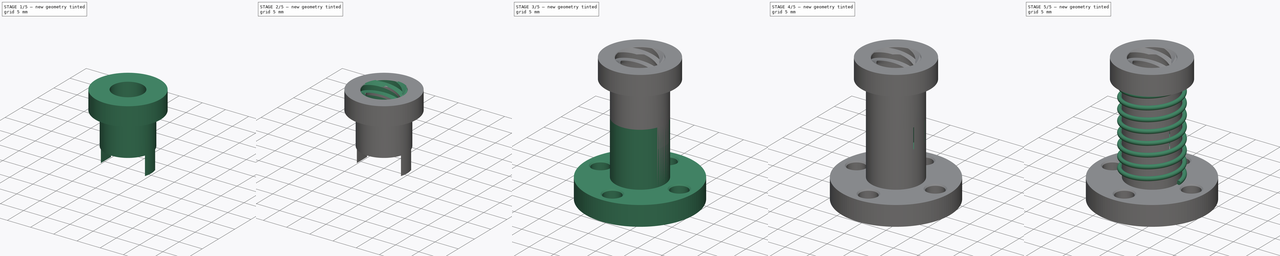
[diagram: build sequence overview — one tinted view per stage of 5, left to right]
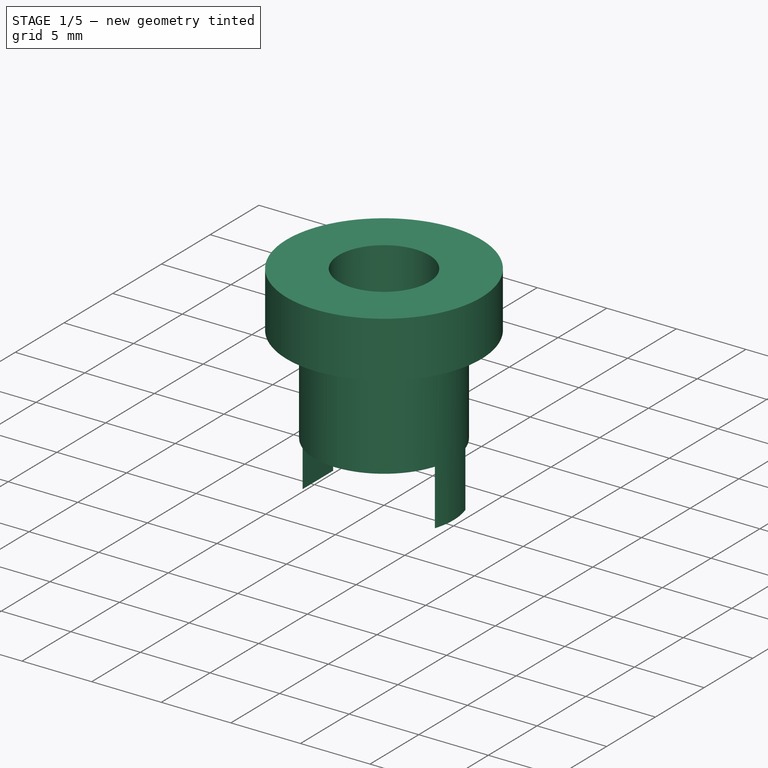
[diagram: stage 1 of 5 — iso view after this stage's code; geometry added in this stage tinted green]
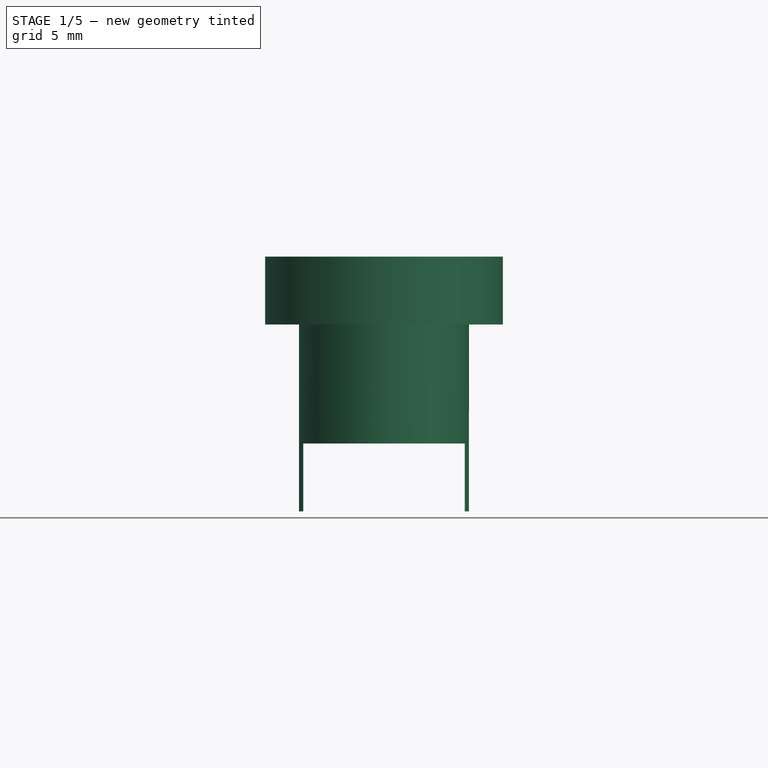
[diagram: stage 1 of 5 — front view after this stage's code; geometry added in this stage tinted green]
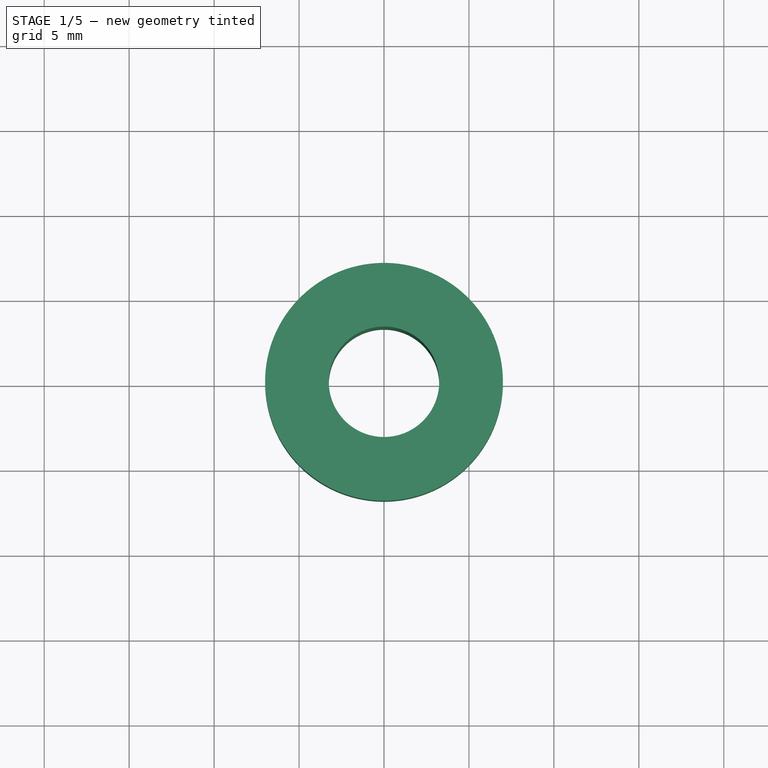
[diagram: stage 1 of 5 — top view after this stage's code; geometry added in this stage tinted green]
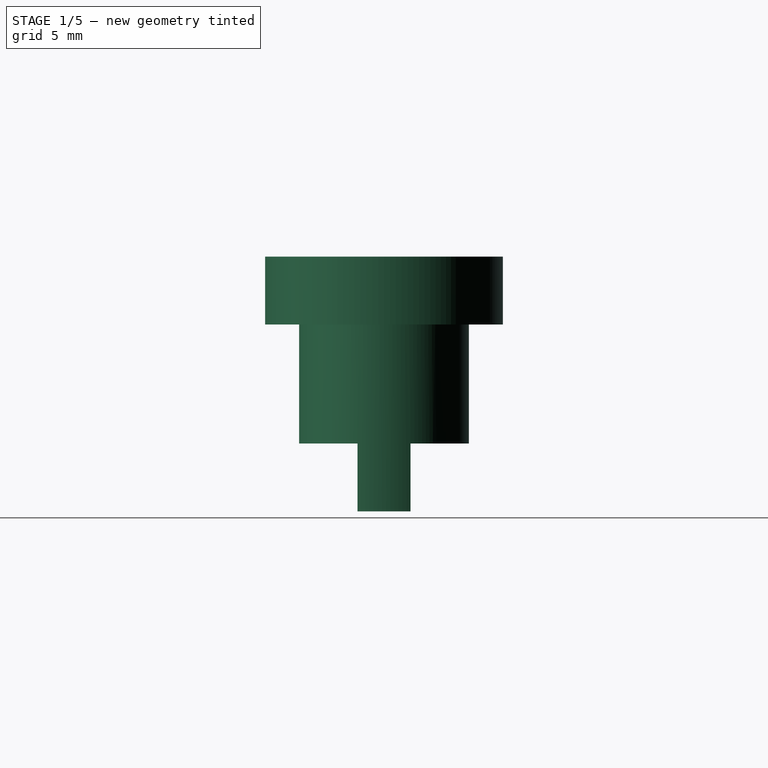
[diagram: stage 1 of 5 — right view after this stage's code; geometry added in this stage tinted green]
FCSTD DOCUMENT  (FreeCAD 0.20R28193 (Git))
Label: T8_antibacklash_nut
Comment: The screw was made based on: ISO 2904\n\nhttps://cdn.standards.iteh.ai/samples/78729/7d158726108b478c889fa887d460ba78/ISO-2904-2020.pdf
License: Creative Commons Attribution
LicenseURL: http://creativecommons.org/licenses/by/4.0/
objects: Sketcher::SketchObject×12, PartDesign::Pocket×5, PartDesign::PolarPattern×3, PartDesign::Body×3, PartDesign::Revolution×2, PartDesign::SubtractiveHelix×2, PartDesign::Groove×2, PartDesign::Chamfer×1, PartDesign::AdditiveHelix×1, App::Part×1
note: 44 computed .brp shape members not serialized (recipe doc carries the construction recipe); baked Part::Feature solids carry a one-line shape summary decoded from their .brp

FEATURE [Sketcher::SketchObject] Sketch005
  FullyConstrained = true
  MapMode = 5
  Placement = pos=(0,0,0) rot=(1,0,0;1.5708rad)
  Support = -> [XZ_Plane002]
  sketch-geometry (6):
    g0: LineSegment StartX=0 StartY=11 StartZ=0 EndX=0 EndY=26 EndZ=0
    g1: LineSegment StartX=0 StartY=26 StartZ=0 EndX=-7 EndY=26 EndZ=0
    g2: LineSegment StartX=-7 StartY=26 StartZ=0 EndX=-7 EndY=22 EndZ=0
    g3: LineSegment StartX=-7 StartY=22 StartZ=0 EndX=-5 EndY=22 EndZ=0
    g4: LineSegment StartX=-5 StartY=22 StartZ=0 EndX=-5 EndY=11 EndZ=0
    g5: LineSegment StartX=-5 StartY=11 StartZ=0 EndX=0 EndY=11 EndZ=0
  constraints (18):
    c: PointOnObject(g0,g-2)
    c: Vertical(g0)
    c: Coincident(g0,g1)
    c: Horizontal(g1)
    c: Coincident(g1,g2)
    c: Vertical(g2)
    c: Coincident(g2,g3)
    c: Horizontal(g3)
    c: Coincident(g3,g4)
    c: Vertical(g4)
    c: Coincident(g4,g5)
    c: Coincident(g5,g0)
    c: Horizontal(g5)
    c: DistanceX(g1,g1) = 7
    c: DistanceX(g5,g5) = 5
    c: DistanceY(g2,g2) = 4
    c: DistanceY(g0,g0) = 15
    c: DistanceY(g0) = 11
FEATURE [PartDesign::Revolution] Revolution001
  Angle = 360
  Axis = (0,2e-16,1)
  Base = (0,0,0)
  Placement = pos=(0,0,0) rot=(1,0,0;1.5708rad)
  Profile = -> Sketch005
  ReferenceAxis = -> Sketch005 [V_Axis]
FEATURE [Sketcher::SketchObject] Sketch006
  FullyConstrained = true
  MapMode = 5
  Placement = pos=(0,1.72e-14,26) rot=(0,0,1;3.14159rad)
  Support = -> [Revolution001]
  sketch-geometry (1):
    g0: Circle CenterX=0 CenterY=0 CenterZ=0 NormalX=0 NormalY=0 NormalZ=1 AngleXU=0 Radius=3.25
  constraints (2):
    c: Coincident(g0,g-1)
    c: Diameter(g0) = 6.5
FEATURE [PartDesign::Pocket] Pocket003
  BaseFeature = -> Revolution001
  Direction = (0,-7e-16,-1)
  Length = 5
  Length2 = 5
  Placement = pos=(0,0,0) rot=(1,0,0;1.5708rad)
  Profile = -> Sketch006
  ReferenceAxis = -> Sketch006 [N_Axis]
  Type = 2
FEATURE [Sketcher::SketchObject] Sketch007
  ExternalGeometry = -> [Pocket003]
  FullyConstrained = true
  MapMode = 5
  Placement = pos=(0,0,0) rot=(1,0,0;1.5708rad)
  Support = -> [XZ_Plane002]
  sketch-geometry (5):
    g0: LineSegment StartX=-4.75 StartY=15 StartZ=0 EndX=-4.75 EndY=11 EndZ=0
    g1: LineSegment StartX=-4.75 StartY=11 StartZ=0 EndX=4.75 EndY=11 EndZ=0
    g2: LineSegment StartX=4.75 StartY=11 StartZ=0 EndX=4.75 EndY=15 EndZ=0
    g3: LineSegment StartX=4.75 StartY=15 StartZ=0 EndX=-4.75 EndY=15 EndZ=0
    g4: GeomPoint X=0 Y=13 Z=0
  constraints (13):
    c: Coincident(g0,g1)
    c: Coincident(g1,g2)
    c: Coincident(g2,g3)
    c: Coincident(g3,g0)
    c: Horizontal(g1)
    c: Horizontal(g3)
    c: Vertical(g0)
    c: Vertical(g2)
    c: Symmetric(g1,g0,g4)
    c: DistanceX(g1,g1) = 9.5
    c: DistanceY(g2,g2) = 4
    c: PointOnObject(g1,g-3)
    c: PointOnObject(g4,g-2)
FEATURE [PartDesign::Pocket] Pocket004
  BaseFeature = -> Pocket003
  Direction = (0,1,-2e-16)
  Length = 5
  Length2 = 5
  Midplane = true
  Placement = pos=(0,0,0) rot=(1,0,0;1.5708rad)
  Profile = -> Sketch007
  ReferenceAxis = -> Sketch007 [N_Axis]
  Type = 1
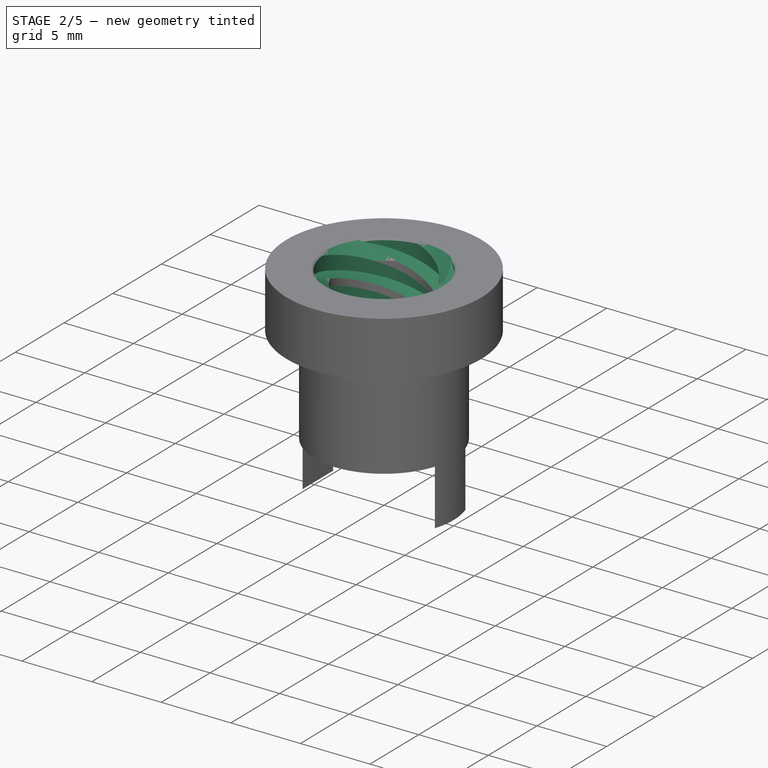
[diagram: stage 2 of 5 — iso view after this stage's code; geometry added in this stage tinted green]
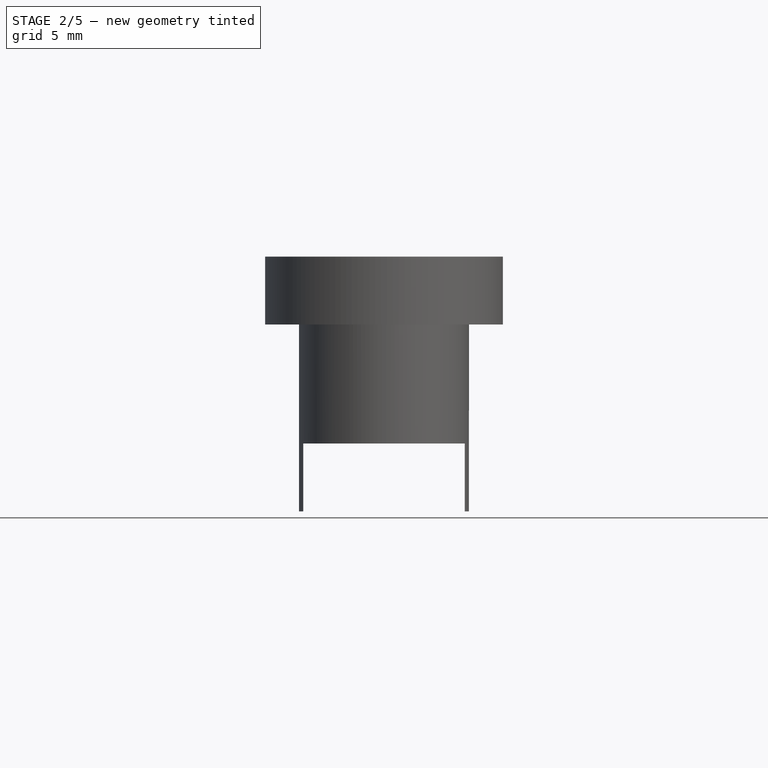
[diagram: stage 2 of 5 — front view after this stage's code; geometry added in this stage tinted green]
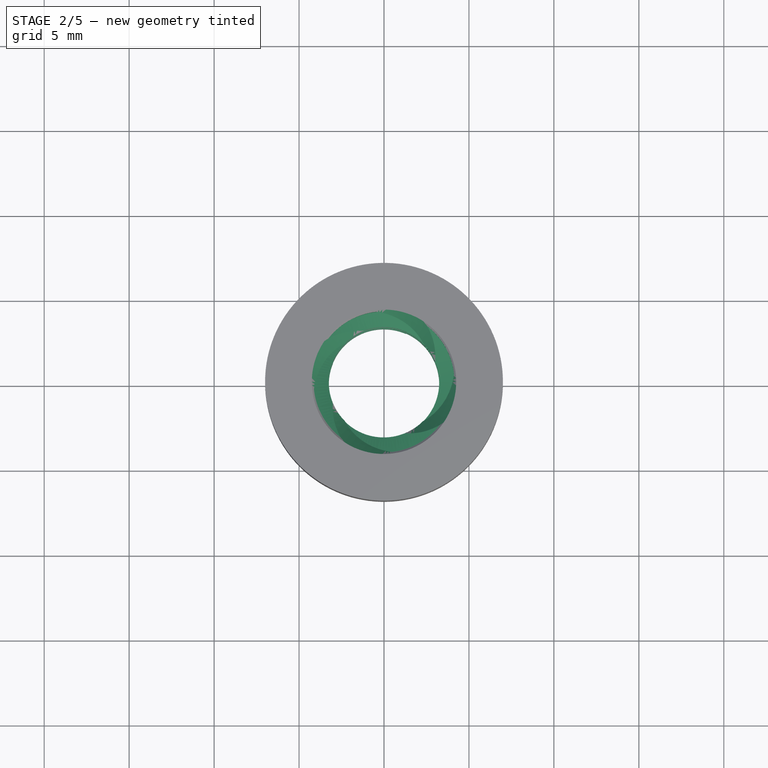
[diagram: stage 2 of 5 — top view after this stage's code; geometry added in this stage tinted green]
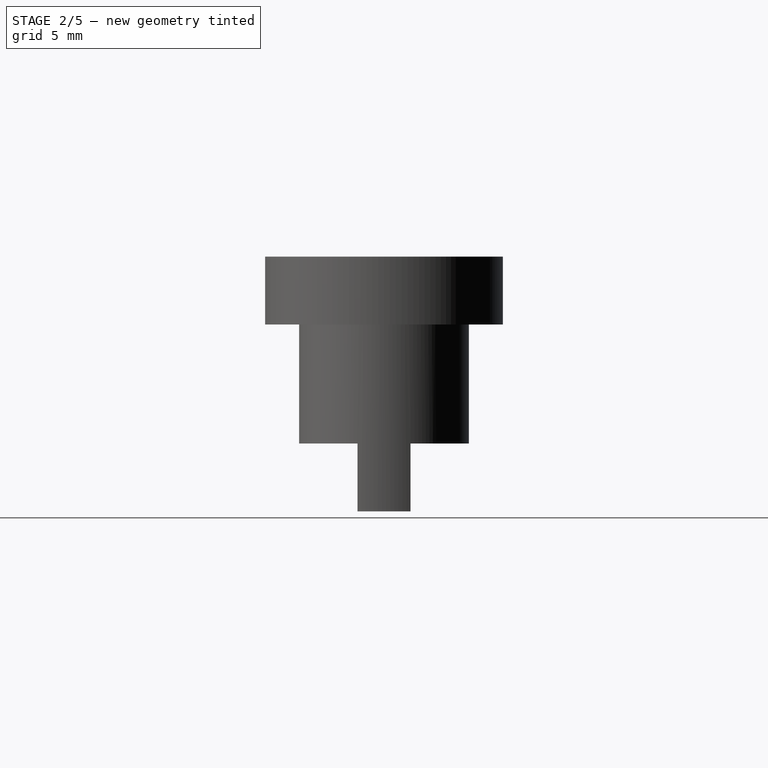
[diagram: stage 2 of 5 — right view after this stage's code; geometry added in this stage tinted green]
FEATURE [PartDesign::Body] Body  label="Bottom"
  Group = -> [Sketch001,Revolution,Sketch002,Pocket,Chamfer,PolarPattern,Sketch003,Pocket001,Sketch004,Pocket002,Sketch008,SubtractiveHelix,PolarPattern001,Sketch009,Groove]
  Origin = -> Origin001
  Tip = -> Groove
FEATURE [Sketcher::SketchObject] Sketch010
  FullyConstrained = true
  MapMode = 5
  Placement = pos=(0,0,0) rot=(1,0,0;1.5708rad)
  Support = -> [XZ_Plane002]
  sketch-geometry (8):
    g0: LineSegment StartX=6.04904 StartY=0.75 StartZ=0 EndX=3.25 EndY=-1e-16 EndZ=0
    g1: LineSegment StartX=3.25 StartY=-1e-16 StartZ=0 EndX=6.04904 EndY=-0.75 EndZ=0
    g2: LineSegment StartX=6.04904 StartY=-0.75 StartZ=0 EndX=3.25 EndY=-1.5 EndZ=0
    g3: LineSegment StartX=3.25 StartY=-1.5 StartZ=0 EndX=6.04904 EndY=-2.25 EndZ=0
    g4: LineSegment StartX=3.25 StartY=-1e-16 StartZ=0 EndX=3.25 EndY=-1.5 EndZ=0
    g5: LineSegment StartX=3.25 StartY=-1.5 StartZ=0 EndX=4.15 EndY=-1.25885 EndZ=0
    g6: LineSegment StartX=4.15 StartY=-1.25885 StartZ=0 EndX=4.15 EndY=-0.241154 EndZ=0
    g7: LineSegment StartX=4.15 StartY=-0.241154 StartZ=0 EndX=3.25 EndY=-1e-16 EndZ=0
  constraints (23):
    c: PointOnObject(g0,g-1)
    c: Coincident(g0,g1)
    c: Coincident(g1,g2)
    c: Coincident(g2,g3)
    c: Vertical(g3,g1)
    c: Vertical(g1,g0)
    c: Vertical(g0,g2)
    c: Parallel(g3,g1)
    c: Parallel(g2,g0)
    c: Angle(g3,g2) = 0.523599
    c: Angle(g0,g-1) = 2.87979
    c: Coincident(g0,g4)
    c: Coincident(g4,g2)
    c: Coincident(g4,g5)
    c: PointOnObject(g5,g2)
    c: Coincident(g5,g6)
    c: PointOnObject(g6,g1)
    c: Coincident(g6,g7)
    c: Coincident(g7,g4)
    c: Vertical(g6)
    c: DistanceX(g4) = 3.25
    c: DistanceX(g6) = 4.15
    c: DistanceY(g3,g1) = 1.5
FEATURE [PartDesign::SubtractiveHelix] SubtractiveHelix001
  Angle = 0
  Axis = (0,2e-16,1)
  Base = (0,0,0)
  BaseFeature = -> Pocket004
  Growth = 0
  HasBeenEdited = true
  Height = 30
  LeftHanded = false
  Mode = 0
  Outside = false
  Pitch = 8
  Placement = pos=(0,0,0) rot=(1,0,0;1.5708rad)
  Profile = -> Sketch010
  ReferenceAxis = -> Sketch010 [V_Axis]
  Turns = 3.75
FEATURE [PartDesign::PolarPattern] PolarPattern002
  Angle = 360
  Axis = -> Sketch010 [V_Axis]
  BaseFeature = -> SubtractiveHelix001
  Occurrences = 4
  Originals = -> [SubtractiveHelix001]
  Overlap = 0
  Placement = pos=(0,0,0) rot=(1,0,0;1.5708rad)
FEATURE [Sketcher::SketchObject] Sketch011
  ExternalGeometry = -> [PolarPattern002]
  FullyConstrained = true
  MapMode = 5
  Placement = pos=(0,0,0) rot=(1,0,0;1.5708rad)
  Support = -> [XZ_Plane002]
  sketch-geometry (6):
    g0: LineSegment StartX=-4.25 StartY=26 StartZ=0 EndX=-3.25 EndY=26 EndZ=0
    g1: LineSegment StartX=-3.25 StartY=26 StartZ=0 EndX=-3.25 EndY=25 EndZ=0
    g2: LineSegment StartX=-3.25 StartY=25 StartZ=0 EndX=-4.25 EndY=26 EndZ=0
    g3: LineSegment StartX=-4.25 StartY=15 StartZ=0 EndX=-3.25 EndY=15 EndZ=0
    g4: LineSegment StartX=-3.25 StartY=15 StartZ=0 EndX=-3.25 EndY=16 EndZ=0
    g5: LineSegment StartX=-3.25 StartY=16 StartZ=0 EndX=-4.25 EndY=15 EndZ=0
  constraints (18):
    c: PointOnObject(g0,g-3)
    c: PointOnObject(g0,g-3)
    c: Coincident(g0,g1)
    c: Coincident(g1,g2)
    c: Coincident(g2,g0)
    c: PointOnObject(g3,g-4)
    c: PointOnObject(g3,g-4)
    c: Coincident(g3,g4)
    c: Vertical(g4)
    c: Coincident(g4,g5)
    c: Coincident(g5,g3)
    c: Vertical(g4,g1)
    c: Vertical(g1)
    c: Equal(g0,g1)
    c: Equal(g1,g3)
    c: Equal(g3,g4)
    c: DistanceX(g3,g3) = 1
    c: DistanceX(g3) = -3.25
FEATURE [PartDesign::Groove] Groove001
  Angle = 360
  Axis = (0,2e-16,1)
  Base = (0,0,0)
  BaseFeature = -> PolarPattern002
  Placement = pos=(0,0,0) rot=(1,0,0;1.5708rad)
  Profile = -> Sketch011
  ReferenceAxis = -> Sketch011 [V_Axis]
  Reversed = true
FEATURE [PartDesign::Body] Body001  label="Top"
  Group = -> [Sketch005,Revolution001,Sketch006,Pocket003,Sketch007,Pocket004,Sketch010,SubtractiveHelix001,PolarPattern002,Sketch011,Groove001]
  Origin = -> Origin002
  Tip = -> Groove001
FEATURE [App::Part] Part  label="T8 antibacklash nut"
  Group = -> [Body,Body001,Body002]
  Origin = -> Origin
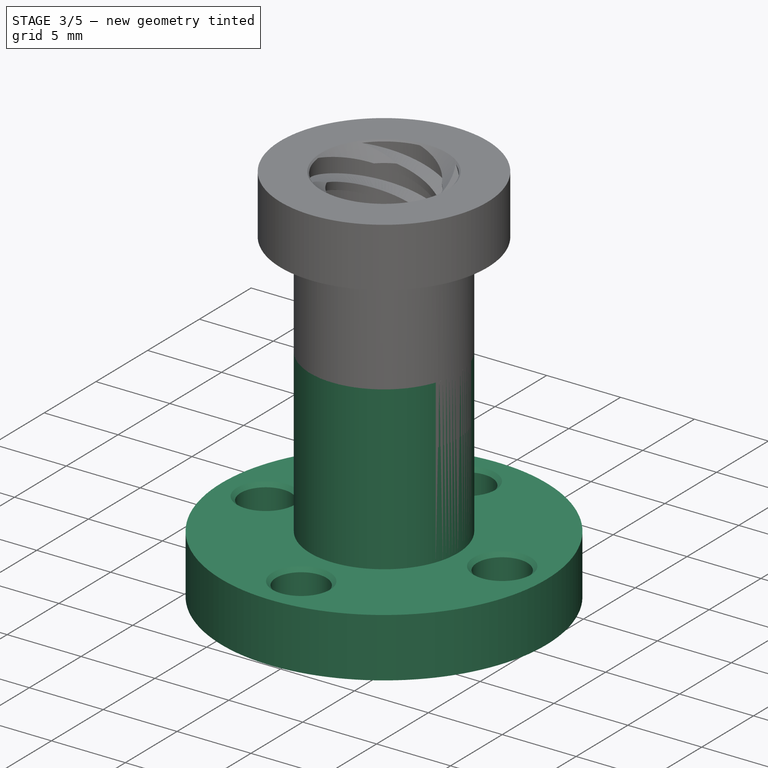
[diagram: stage 3 of 5 — iso view after this stage's code; geometry added in this stage tinted green]
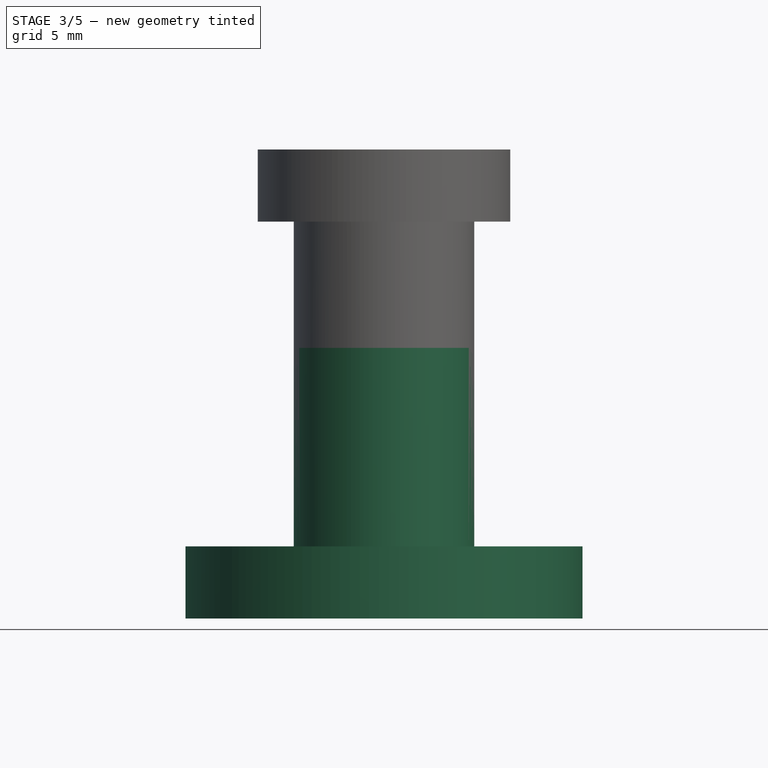
[diagram: stage 3 of 5 — front view after this stage's code; geometry added in this stage tinted green]
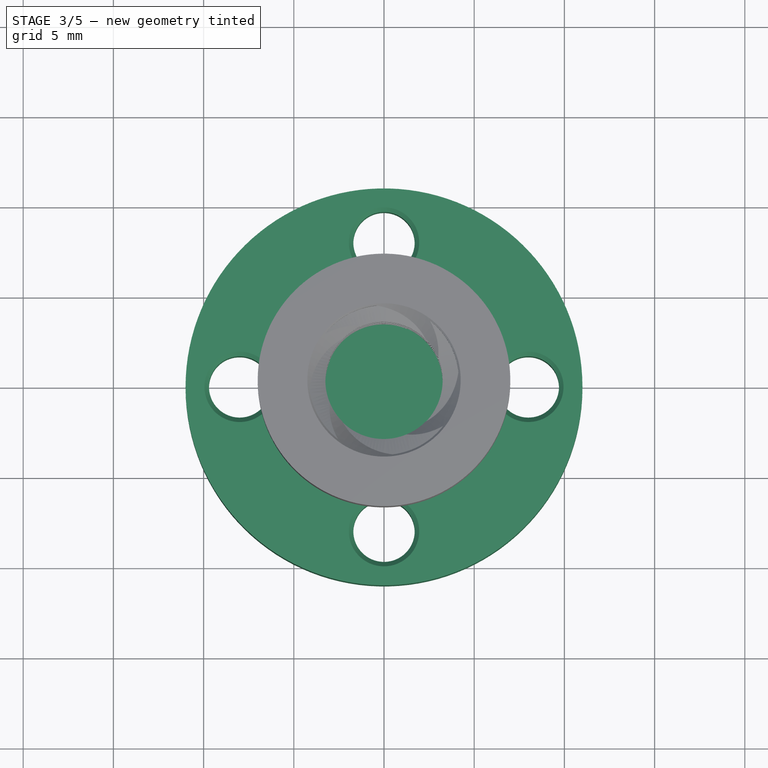
[diagram: stage 3 of 5 — top view after this stage's code; geometry added in this stage tinted green]
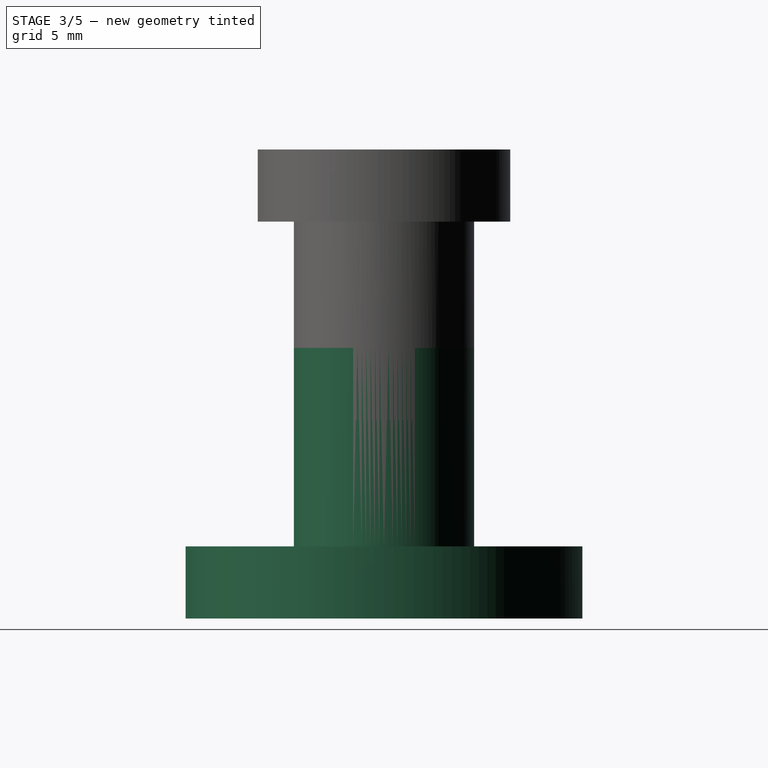
[diagram: stage 3 of 5 — right view after this stage's code; geometry added in this stage tinted green]
FEATURE [Sketcher::SketchObject] Sketch
  FullyConstrained = true
  MapMode = 5
  Placement = pos=(0,0,0) rot=(1,0,0;1.5708rad)
  Support = -> [XZ_Plane003]
  sketch-geometry (1):
    g0: Circle CenterX=5.4 CenterY=4.4 CenterZ=0 NormalX=0 NormalY=0 NormalZ=1 AngleXU=0 Radius=0.4
  constraints (3):
    c: Diameter(g0) = 0.8
    c: DistanceY(g0) = 4.4
    c: DistanceX(g0) = 5.4
FEATURE [Sketcher::SketchObject] Sketch001
  FullyConstrained = true
  MapMode = 5
  Placement = pos=(0,0,0) rot=(1,0,0;1.5708rad)
  Support = -> [XZ_Plane001]
  sketch-geometry (6):
    g0: LineSegment StartX=0 StartY=0 StartZ=0 EndX=0 EndY=15 EndZ=0
    g1: LineSegment StartX=0 StartY=15 StartZ=0 EndX=-5 EndY=15 EndZ=0
    g2: LineSegment StartX=-5 StartY=15 StartZ=0 EndX=-5 EndY=4 EndZ=0
    g3: LineSegment StartX=-5 StartY=4 StartZ=0 EndX=-11 EndY=4 EndZ=0
    g4: LineSegment StartX=-11 StartY=4 StartZ=0 EndX=-11 EndY=0 EndZ=0
    g5: LineSegment StartX=-11 StartY=0 StartZ=0 EndX=0 EndY=0 EndZ=0
  constraints (17):
    c: Coincident(g-1,g0)
    c: Coincident(g0,g1)
    c: Coincident(g1,g2)
    c: Coincident(g2,g3)
    c: Horizontal(g3)
    c: Coincident(g3,g4)
    c: Vertical(g4)
    c: Coincident(g4,g5)
    c: Coincident(g5,g0)
    c: Horizontal(g5)
    c: Horizontal(g1)
    c: Vertical(g2)
    c: Vertical(g0)
    c: DistanceY(g0,g0) = 15
    c: DistanceY(g4,g4) = 4
    c: DistanceX(g1,g1) = 5
    c: DistanceX(g5,g5) = 11
FEATURE [PartDesign::Revolution] Revolution
  Angle = 360
  Axis = (0,2e-16,1)
  Base = (0,0,0)
  Placement = pos=(0,0,0) rot=(1,0,0;1.5708rad)
  Profile = -> Sketch001
  ReferenceAxis = -> Sketch001 [V_Axis]
FEATURE [Sketcher::SketchObject] Sketch002
  FullyConstrained = true
  MapMode = 5
  Placement = pos=(0,2.6e-15,4) rot=(0,0,1;3.14159rad)
  Support = -> [Revolution]
  sketch-geometry (1):
    g0: Circle CenterX=8 CenterY=0 CenterZ=0 NormalX=0 NormalY=0 NormalZ=1 AngleXU=0 Radius=1.7
  constraints (3):
    c: PointOnObject(g0,g-1)
    c: Diameter(g0) = 3.4
    c: DistanceX(g0) = 8
FEATURE [PartDesign::Pocket] Pocket
  BaseFeature = -> Revolution
  Direction = (0,-7e-16,-1)
  Length = 5
  Length2 = 5
  Placement = pos=(0,0,0) rot=(1,0,0;1.5708rad)
  Profile = -> Sketch002
  ReferenceAxis = -> Sketch002 [N_Axis]
  Type = 2
FEATURE [PartDesign::Chamfer] Chamfer
  Angle = 45
  Base = -> Pocket [Edge5]
  BaseFeature = -> Pocket
  ChamferType = 0
  FlipDirection = false
  Placement = pos=(0,0,0) rot=(1,0,0;1.5708rad)
  Size = 0.25
  Size2 = 1
  SupportTransform = false
  UseAllEdges = false
FEATURE [PartDesign::PolarPattern] PolarPattern
  Angle = 360
  Axis = -> Sketch002 [N_Axis]
  BaseFeature = -> Chamfer
  Occurrences = 4
  Originals = -> [Pocket,Chamfer]
  Overlap = 0
  Placement = pos=(0,0,0) rot=(1,0,0;1.5708rad)
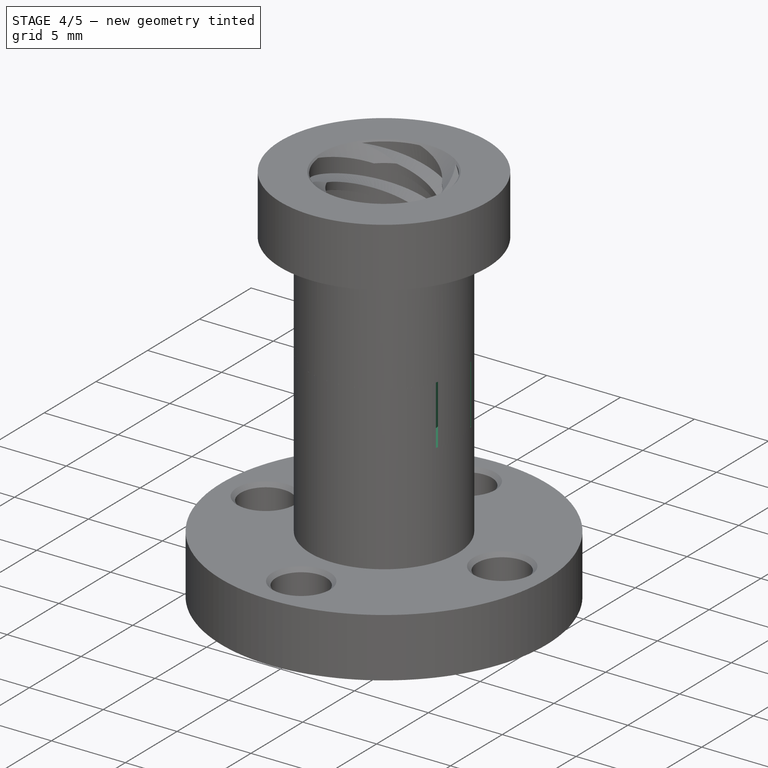
[diagram: stage 4 of 5 — iso view after this stage's code; geometry added in this stage tinted green]
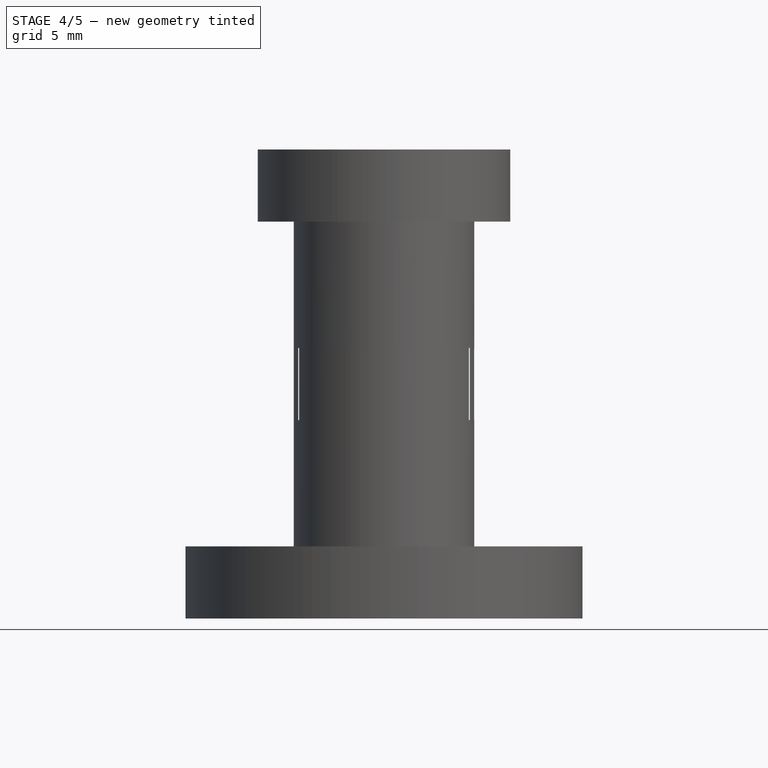
[diagram: stage 4 of 5 — front view after this stage's code; geometry added in this stage tinted green]
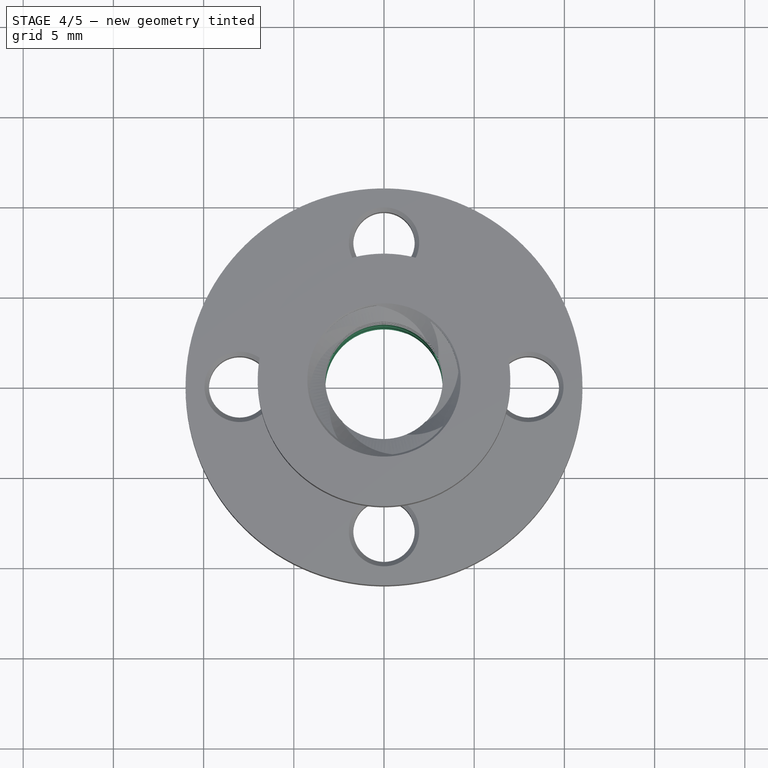
[diagram: stage 4 of 5 — top view after this stage's code; geometry added in this stage tinted green]
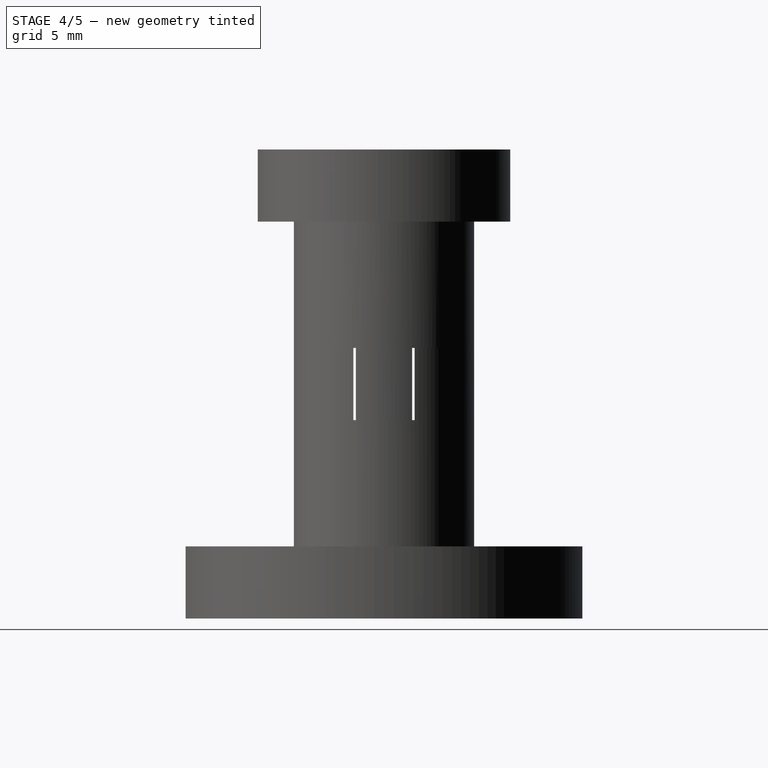
[diagram: stage 4 of 5 — right view after this stage's code; geometry added in this stage tinted green]
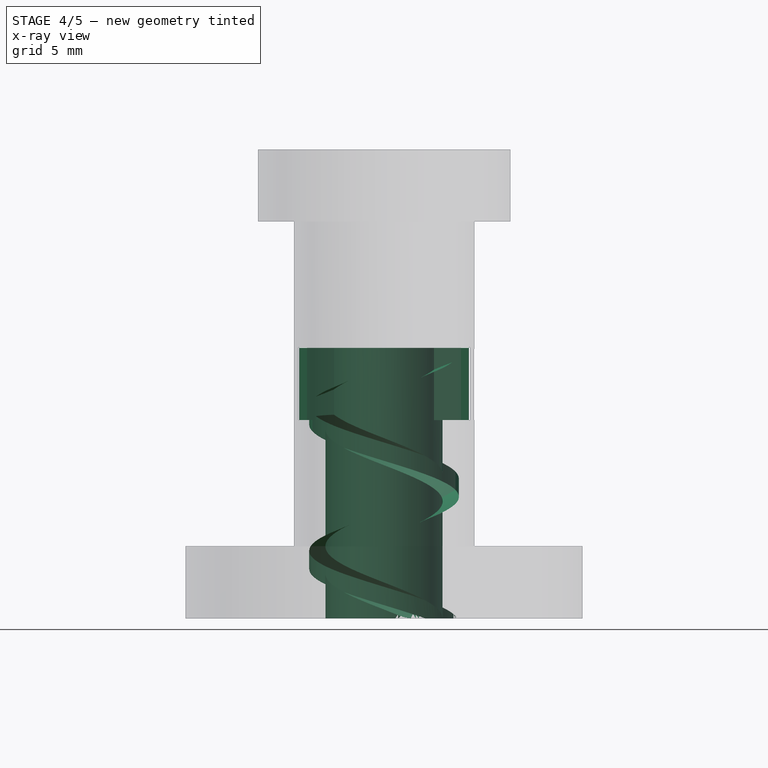
[diagram: stage 4 of 5 — x-ray composite at the front view; earlier geometry ghosted, this stage's added geometry solid]
FEATURE [Sketcher::SketchObject] Sketch003
  FullyConstrained = true
  MapMode = 5
  Placement = pos=(0,9.9e-15,15) rot=(0,0,1;3.14159rad)
  Support = -> [PolarPattern]
  sketch-geometry (1):
    g0: Circle CenterX=0 CenterY=0 CenterZ=0 NormalX=0 NormalY=0 NormalZ=1 AngleXU=0 Radius=3.25
  constraints (2):
    c: Coincident(g0,g-1)
    c: Diameter(g0) = 6.5
FEATURE [PartDesign::Pocket] Pocket001
  BaseFeature = -> PolarPattern
  Direction = (0,-1.1e-15,-1)
  Length = 5
  Length2 = 5
  Placement = pos=(0,0,0) rot=(1,0,0;1.5708rad)
  Profile = -> Sketch003
  ReferenceAxis = -> Sketch003 [N_Axis]
  Type = 2
FEATURE [Sketcher::SketchObject] Sketch004
  ExternalGeometry = -> [Pocket001]
  FullyConstrained = true
  MapMode = 5
  Placement = pos=(0,0,0) rot=(0.57735,0.57735,0.57735;2.0944rad)
  Support = -> [YZ_Plane001]
  sketch-geometry (5):
    g0: LineSegment StartX=-1.7 StartY=11 StartZ=0 EndX=-1.7 EndY=15 EndZ=0
    g1: LineSegment StartX=-1.7 StartY=15 StartZ=0 EndX=1.7 EndY=15 EndZ=0
    g2: LineSegment StartX=1.7 StartY=15 StartZ=0 EndX=1.7 EndY=11 EndZ=0
    g3: LineSegment StartX=1.7 StartY=11 StartZ=0 EndX=-1.7 EndY=11 EndZ=0
    g4: GeomPoint X=0 Y=13 Z=0
  constraints (13):
    c: Coincident(g0,g1)
    c: Coincident(g1,g2)
    c: Coincident(g2,g3)
    c: Coincident(g3,g0)
    c: Horizontal(g1)
    c: Horizontal(g3)
    c: Vertical(g0)
    c: Vertical(g2)
    c: Symmetric(g1,g0,g4)
    c: PointOnObject(g4,g-2)
    c: PointOnObject(g1,g-3)
    c: DistanceX(g3,g3) = 3.4
    c: DistanceY(g2,g2) = 4
FEATURE [PartDesign::Pocket] Pocket002
  BaseFeature = -> Pocket001
  Direction = (-1,2e-16,-3e-16)
  Length = 5
  Length2 = 5
  Midplane = true
  Placement = pos=(0,0,0) rot=(1,0,0;1.5708rad)
  Profile = -> Sketch004
  ReferenceAxis = -> Sketch004 [N_Axis]
  Type = 1
FEATURE [PartDesign::Body] Body002  label="Spring"
  Group = -> [Sketch,AdditiveHelix]
  Origin = -> Origin003
  Tip = -> AdditiveHelix
FEATURE [Sketcher::SketchObject] Sketch008  label="ISO 2904"
  FullyConstrained = true
  MapMode = 5
  Placement = pos=(0,0,0) rot=(1,0,0;1.5708rad)
  Support = -> [XZ_Plane001]
  sketch-geometry (8):
    g0: LineSegment StartX=6.04904 StartY=0.75 StartZ=0 EndX=3.25 EndY=0 EndZ=0
    g1: LineSegment StartX=3.25 StartY=0 StartZ=0 EndX=6.04904 EndY=-0.75 EndZ=0
    g2: LineSegment StartX=6.04904 StartY=-0.75 StartZ=0 EndX=3.25 EndY=-1.5 EndZ=0
    g3: LineSegment StartX=3.25 StartY=-1.5 StartZ=0 EndX=6.04904 EndY=-2.25 EndZ=0
    g4: LineSegment StartX=3.25 StartY=0 StartZ=0 EndX=3.25 EndY=-1.5 EndZ=0
    g5: LineSegment StartX=3.25 StartY=-1.5 StartZ=0 EndX=4.15 EndY=-1.25885 EndZ=0
    g6: LineSegment StartX=4.15 StartY=-1.25885 StartZ=0 EndX=4.15 EndY=-0.241154 EndZ=0
    g7: LineSegment StartX=4.15 StartY=-0.241154 StartZ=0 EndX=3.25 EndY=0 EndZ=0
  constraints (23):
    c: PointOnObject(g0,g-1)
    c: Coincident(g0,g1)
    c: Coincident(g1,g2)
    c: Coincident(g2,g3)
    c: Vertical(g1,g0)
    c: Vertical(g0,g3)
    c: Vertical(g2,g0)
    c: Parallel(g0,g2)
    c: Parallel(g1,g3)
    c: Angle(g3,g2) = 0.523599
    c: Angle(g0,g-1) = 2.87979
    c: Coincident(g0,g4)
    c: Coincident(g4,g2)
    c: Coincident(g4,g5)
    c: PointOnObject(g5,g2)
    c: Coincident(g5,g6)
    c: PointOnObject(g6,g1)
    c: Vertical(g6)
    c: Coincident(g6,g7)
    c: Coincident(g7,g4)
    c: DistanceX(g4) = 3.25
    c: DistanceX(g6) = 4.15
    c: DistanceY(g3,g1) = 1.5
FEATURE [PartDesign::SubtractiveHelix] SubtractiveHelix
  Angle = 0
  Axis = (0,2e-16,1)
  Base = (0,0,0)
  BaseFeature = -> Pocket002
  Growth = 0
  HasBeenEdited = true
  Height = 20
  LeftHanded = false
  Mode = 0
  Outside = false
  Pitch = 8
  Placement = pos=(0,0,0) rot=(1,0,0;1.5708rad)
  Profile = -> Sketch008
  ReferenceAxis = -> Sketch008 [V_Axis]
  Turns = 2.5
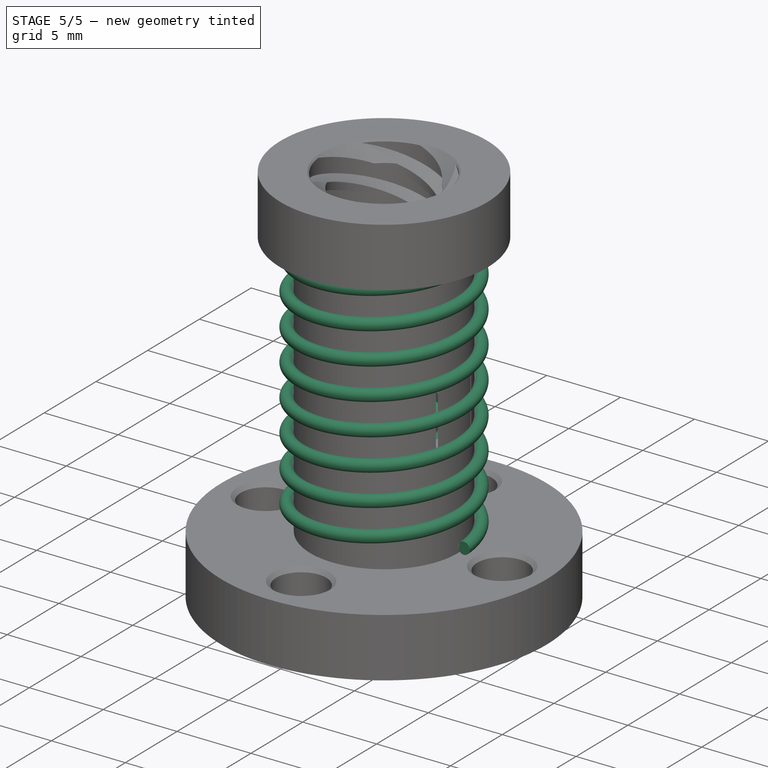
[diagram: stage 5 of 5 — iso view after this stage's code; geometry added in this stage tinted green]
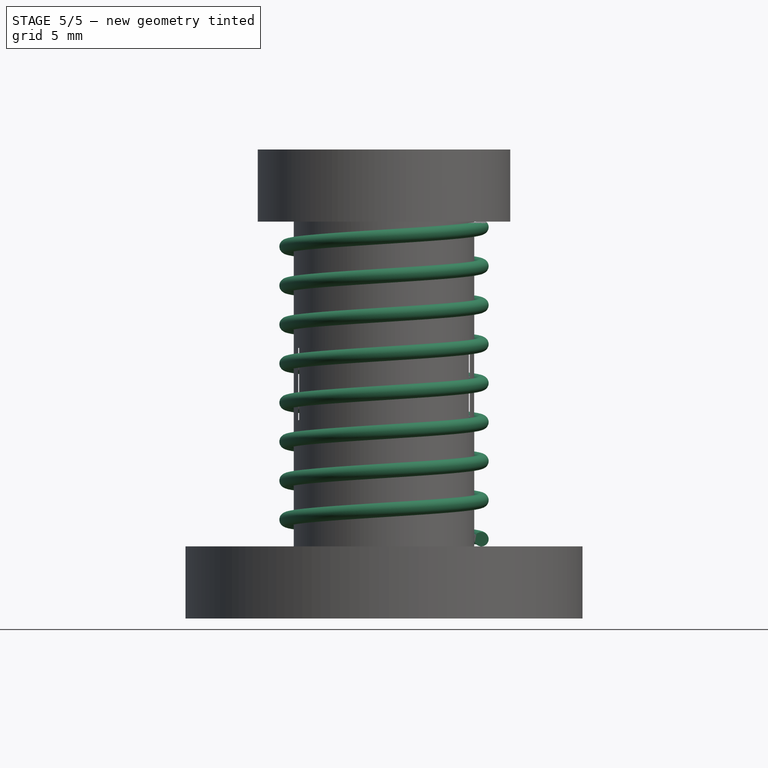
[diagram: stage 5 of 5 — front view after this stage's code; geometry added in this stage tinted green]
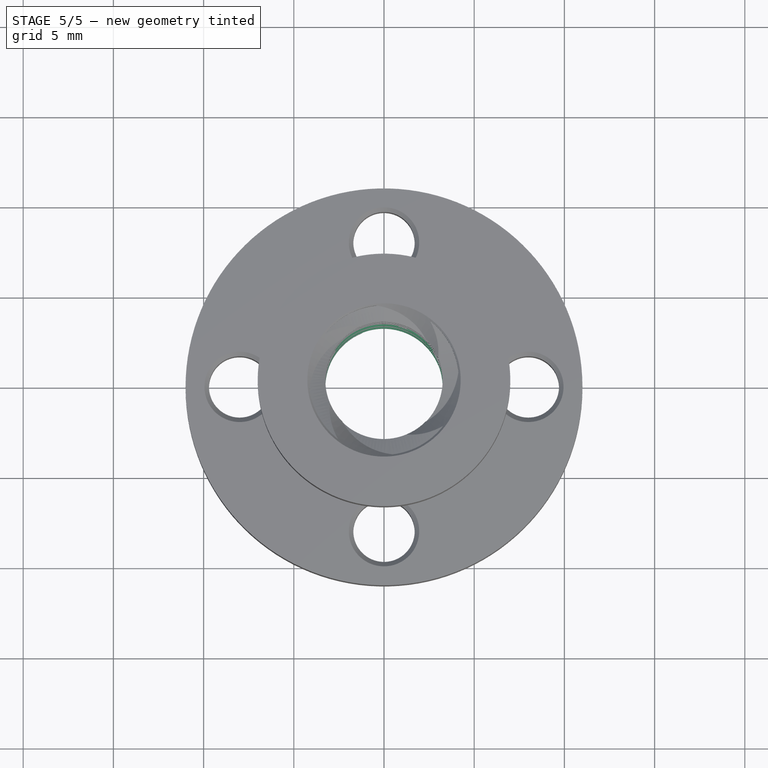
[diagram: stage 5 of 5 — top view after this stage's code; geometry added in this stage tinted green]
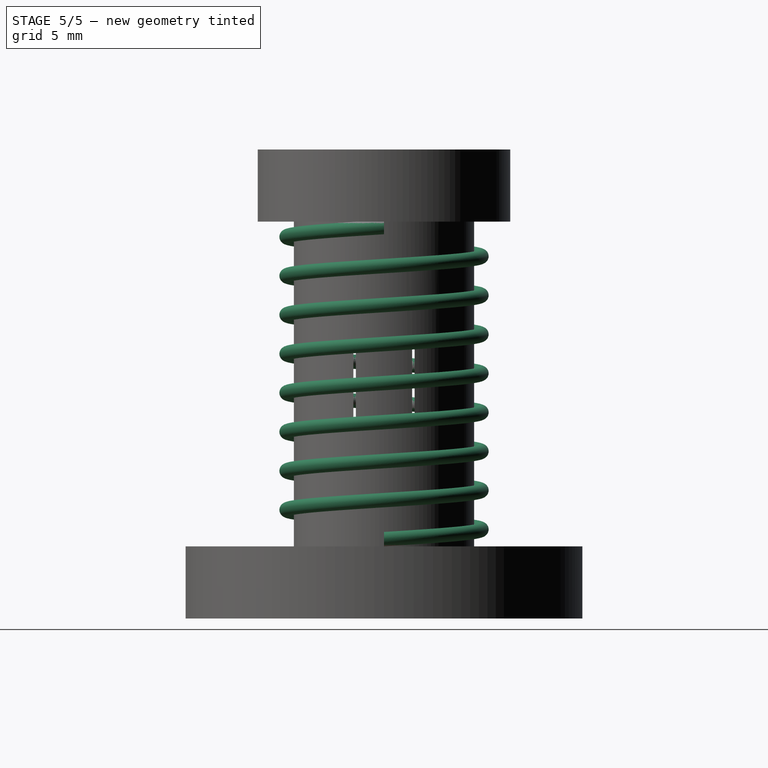
[diagram: stage 5 of 5 — right view after this stage's code; geometry added in this stage tinted green]
FEATURE [PartDesign::AdditiveHelix] AdditiveHelix
  Angle = 0
  Axis = (0,2e-16,1)
  Base = (0,0,0)
  Growth = 0
  HasBeenEdited = true
  Height = 17.3
  LeftHanded = false
  Mode = 2
  Outside = false
  Pitch = 2.1625
  Placement = pos=(0,0,0) rot=(1,0,0;1.5708rad)
  Profile = -> Sketch
  ReferenceAxis = -> Sketch [V_Axis]
  Turns = 8
FEATURE [PartDesign::PolarPattern] PolarPattern001
  Angle = 360
  Axis = -> Sketch008 [V_Axis]
  BaseFeature = -> SubtractiveHelix
  Occurrences = 4
  Originals = -> [SubtractiveHelix]
  Overlap = 0
  Placement = pos=(0,0,0) rot=(1,0,0;1.5708rad)
FEATURE [Sketcher::SketchObject] Sketch009
  ExternalGeometry = -> [PolarPattern001]
  FullyConstrained = true
  MapMode = 5
  Placement = pos=(0,0,0) rot=(1,0,0;1.5708rad)
  Support = -> [XZ_Plane001]
  sketch-geometry (6):
    g0: LineSegment StartX=-4.25 StartY=0 StartZ=0 EndX=-3.25 EndY=0 EndZ=0
    g1: LineSegment StartX=-3.25 StartY=0 StartZ=0 EndX=-3.25 EndY=1 EndZ=0
    g2: LineSegment StartX=-3.25 StartY=1 StartZ=0 EndX=-4.25 EndY=0 EndZ=0
    g3: LineSegment StartX=-4.25 StartY=15 StartZ=0 EndX=-3.25 EndY=14 EndZ=0
    g4: LineSegment StartX=-3.25 StartY=14 StartZ=0 EndX=-3.25 EndY=15 EndZ=0
    g5: LineSegment StartX=-3.25 StartY=15 StartZ=0 EndX=-4.25 EndY=15 EndZ=0
  constraints (18):
    c: PointOnObject(g0,g-1)
    c: PointOnObject(g0,g-1)
    c: Coincident(g0,g1)
    c: Vertical(g1)
    c: Coincident(g1,g2)
    c: Coincident(g2,g0)
    c: PointOnObject(g3,g-3)
    c: Coincident(g3,g4)
    c: Vertical(g4)
    c: Coincident(g4,g5)
    c: Horizontal(g5)
    c: Coincident(g5,g3)
    c: Equal(g4,g5)
    c: Equal(g5,g1)
    c: Equal(g1,g0)
    c: DistanceX(g0,g0) = 1
    c: DistanceX(g0) = -3.25
    c: Vertical(g1,g3)
FEATURE [PartDesign::Groove] Groove
  Angle = 360
  Axis = (0,2e-16,1)
  Base = (0,0,0)
  BaseFeature = -> PolarPattern001
  Placement = pos=(0,0,0) rot=(1,0,0;1.5708rad)
  Profile = -> Sketch009
  ReferenceAxis = -> Sketch009 [V_Axis]
  Reversed = true
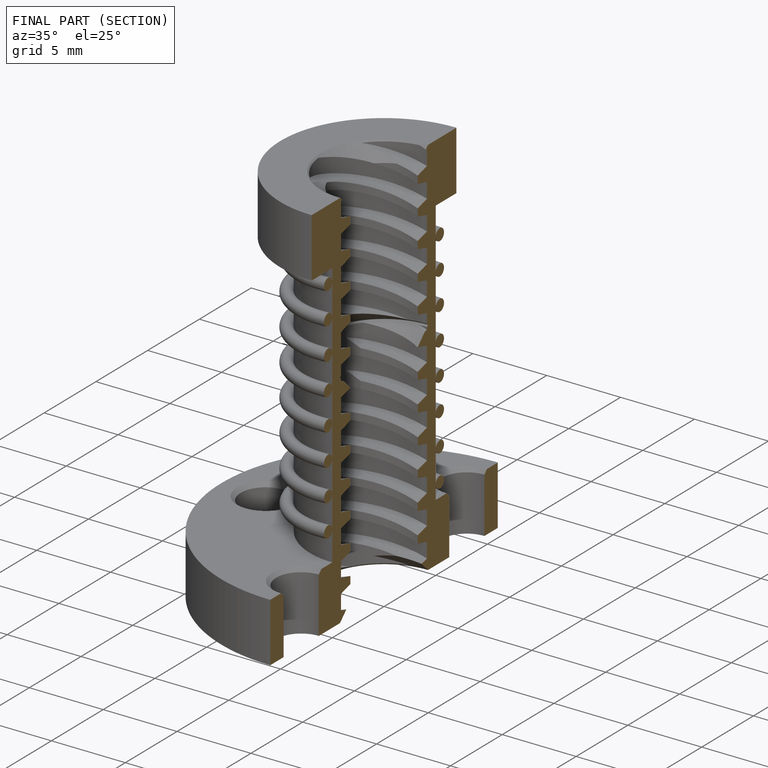
[diagram: finished part — half-section view (interior)]
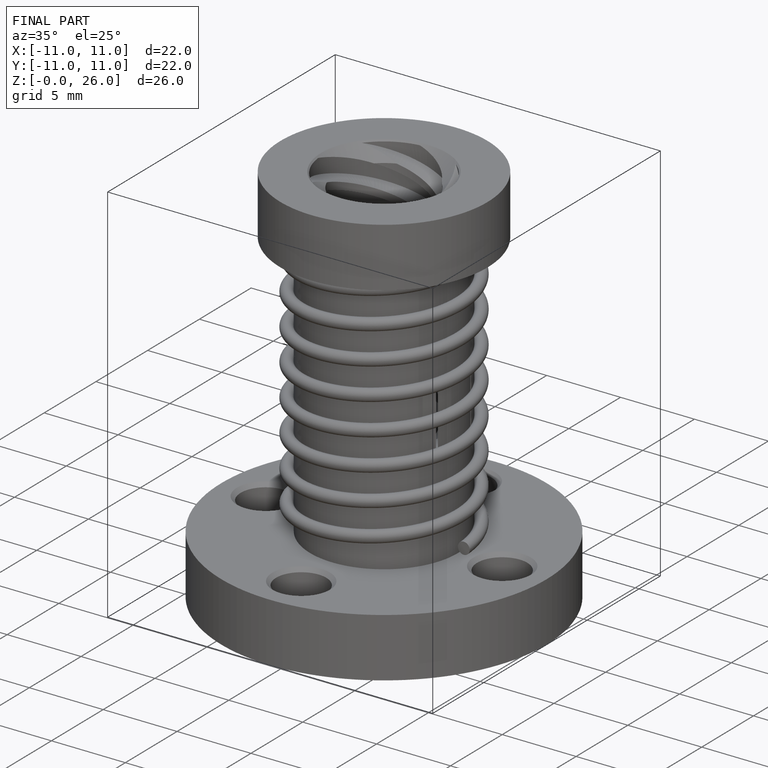
[diagram: finished part — iso view with bounding-box wireframe]
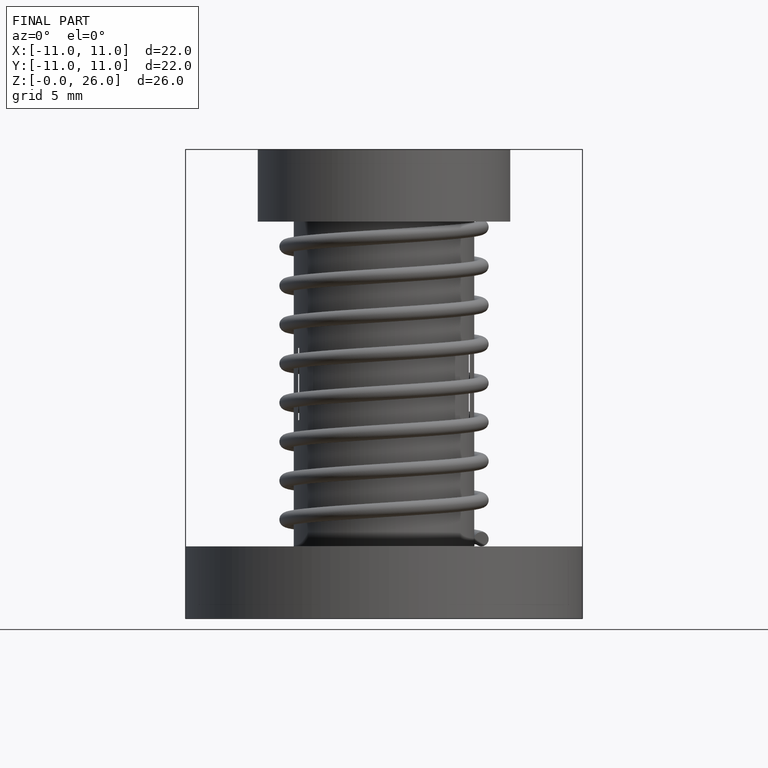
[diagram: finished part — front view with bounding-box wireframe]
